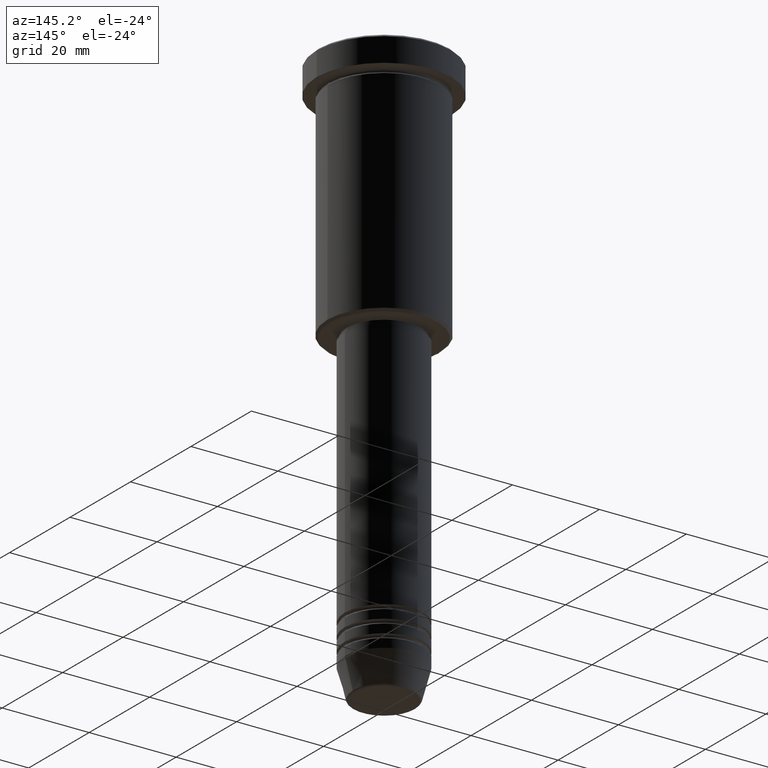
[diagram: clean part render]
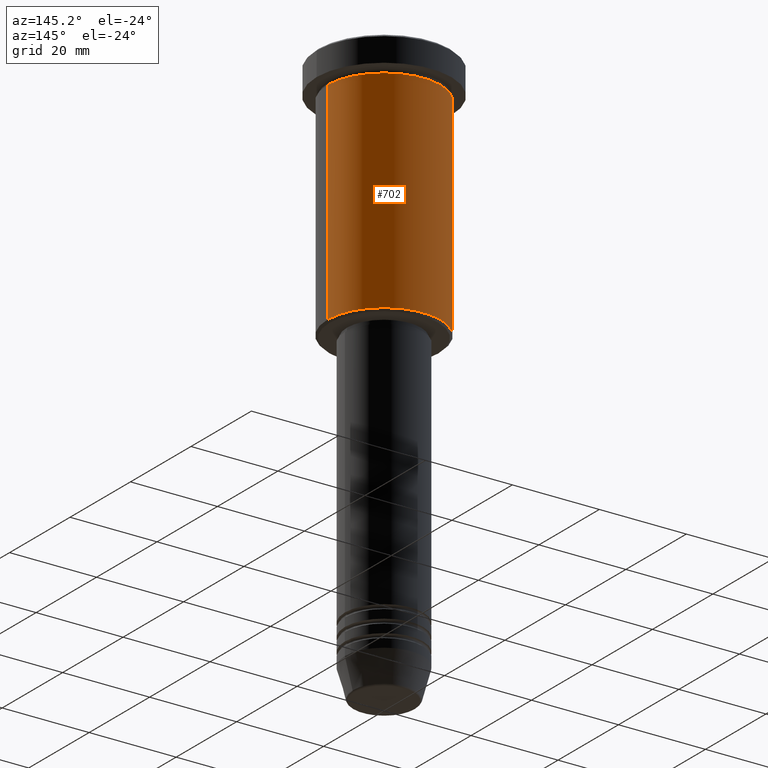
[diagram: same view with one face highlighted and labeled with its STEP entity id]
A machine part, auxiliary view. The second image highlights one B-rep face of the part: STEP entity #702.
In plain terms, the highlighted cylindrical surface (partial cylindrical patch) has radius 13 mm, axis along (-0, -0, 1).
Its self-contained STEP definition (entity closure, byte-faithful):
#32 = ORIENTED_EDGE ( 'NONE', *, *, #692, .F. ) ;
#34 = AXIS2_PLACEMENT_3D ( 'NONE', #1106, #192, #559 ) ;
#102 = VERTEX_POINT ( 'NONE', #443 ) ;
#174 = ORIENTED_EDGE ( 'NONE', *, *, #806, .F. ) ;
#192 = DIRECTION ( 'NONE',  ( -0.000000000000000000, -0.000000000000000000, 1.000000000000000000 ) ) ;
#203 = CARTESIAN_POINT ( 'NONE',  ( -13.00000000000000000, 1.592040838891559095E-15, -6.999999999999995559 ) ) ;
#224 = ORIENTED_EDGE ( 'NONE', *, *, #635, .T. ) ;
#249 = VECTOR ( 'NONE', #276, 1000.000000000000000 ) ;
#262 = CARTESIAN_POINT ( 'NONE',  ( 0.000000000000000000, 0.000000000000000000, -55.49999999999996447 ) ) ;
#276 = DIRECTION ( 'NONE',  ( -0.000000000000000000, -0.000000000000000000, 1.000000000000000000 ) ) ;
#298 = CARTESIAN_POINT ( 'NONE',  ( 0.000000000000000000, 0.000000000000000000, 0.000000000000000000 ) ) ;
#314 = EDGE_LOOP ( 'NONE', ( #224, #1018, #174, #32 ) ) ;
#366 = LINE ( 'NONE', #917, #249 ) ;
#404 = AXIS2_PLACEMENT_3D ( 'NONE', #298, #450, #1113 ) ;
#441 = VERTEX_POINT ( 'NONE', #1150 ) ;
#443 = CARTESIAN_POINT ( 'NONE',  ( 13.00000000000000000, 0.000000000000000000, -55.49999999999996447 ) ) ;
#450 = DIRECTION ( 'NONE',  ( -0.000000000000000000, -0.000000000000000000, 1.000000000000000000 ) ) ;
#496 = LINE ( 'NONE', #861, #595 ) ;
#536 = CIRCLE ( 'NONE', #34, 13.00000000000000000 ) ;
#559 = DIRECTION ( 'NONE',  ( 1.000000000000000000, 0.000000000000000000, 0.000000000000000000 ) ) ;
#595 = VECTOR ( 'NONE', #766, 1000.000000000000000 ) ;
#621 = DIRECTION ( 'NONE',  ( -0.000000000000000000, -0.000000000000000000, 1.000000000000000000 ) ) ;
#635 = EDGE_CURVE ( 'NONE', #102, #441, #719, .T. ) ;
#639 = CYLINDRICAL_SURFACE ( 'NONE', #404, 13.00000000000000000 ) ;
#692 = EDGE_CURVE ( 'NONE', #102, #801, #366, .T. ) ;
#702 = ADVANCED_FACE ( 'NONE', ( #727 ), #639, .T. ) ;
#719 = CIRCLE ( 'NONE', #890, 13.00000000000000000 ) ;
#727 = FACE_OUTER_BOUND ( 'NONE', #314, .T. ) ;
#766 = DIRECTION ( 'NONE',  ( -0.000000000000000000, -0.000000000000000000, 1.000000000000000000 ) ) ;
#801 = VERTEX_POINT ( 'NONE', #1097 ) ;
#806 = EDGE_CURVE ( 'NONE', #801, #846, #536, .T. ) ;
#808 = DIRECTION ( 'NONE',  ( -1.000000000000000000, 0.000000000000000000, 0.000000000000000000 ) ) ;
#846 = VERTEX_POINT ( 'NONE', #203 ) ;
#861 = CARTESIAN_POINT ( 'NONE',  ( -13.00000000000000000, 1.592040838891559095E-15, 0.000000000000000000 ) ) ;
#890 = AXIS2_PLACEMENT_3D ( 'NONE', #262, #621, #808 ) ;
#917 = CARTESIAN_POINT ( 'NONE',  ( 13.00000000000000000, 0.000000000000000000, 0.000000000000000000 ) ) ;
#926 = EDGE_CURVE ( 'NONE', #441, #846, #496, .T. ) ;
#1018 = ORIENTED_EDGE ( 'NONE', *, *, #926, .T. ) ;
#1097 = CARTESIAN_POINT ( 'NONE',  ( 13.00000000000000000, 0.000000000000000000, -6.999999999999995559 ) ) ;
#1106 = CARTESIAN_POINT ( 'NONE',  ( 0.000000000000000000, 0.000000000000000000, -6.999999999999995559 ) ) ;
#1113 = DIRECTION ( 'NONE',  ( 1.000000000000000000, 0.000000000000000000, 0.000000000000000000 ) ) ;
#1150 = CARTESIAN_POINT ( 'NONE',  ( -13.00000000000000000, 1.592040838891559095E-15, -55.49999999999996447 ) ) ;